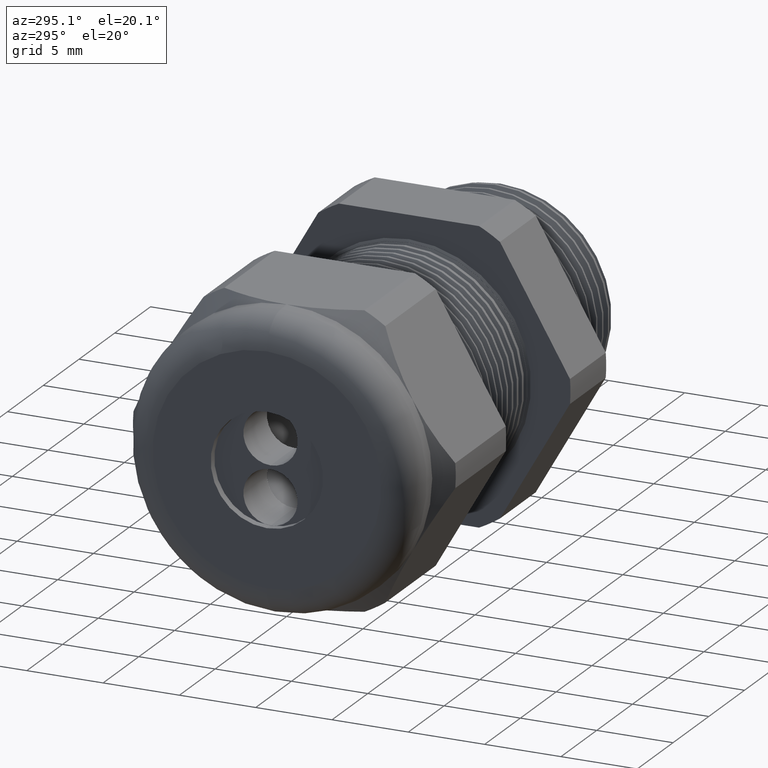
[diagram: clean part render]
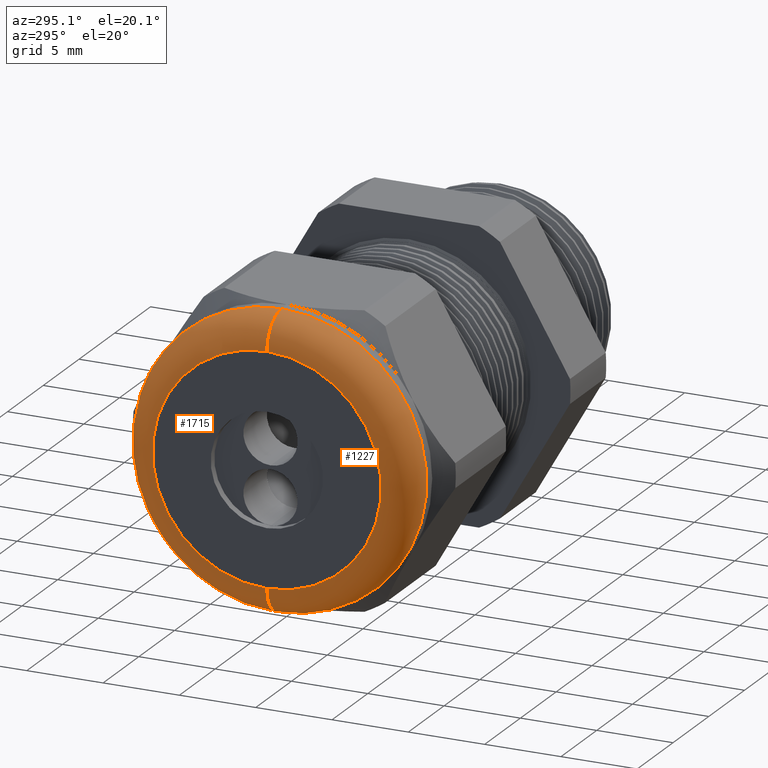
[diagram: same view with one multi-face feature highlighted, each face labeled with its STEP entity id]
A machine part, auxiliary view. The highlighted faces form ONE feature: a constant-radius fillet chain: 2 tangent blend faces with common blend radius 2.032 mm. The faces share edges in the B-rep.
Their STEP definitions:
[1] entity #1715 (Torus):
#1715 = ADVANCED_FACE ( 'NONE', ( #4343 ), #4341, .T. ) ;
#1733 = ORIENTED_EDGE ( 'NONE', *, *, #1747, .F. ) ;
#1734 = ORIENTED_EDGE ( 'NONE', *, *, #1740, .F. ) ;
#1735 = EDGE_CURVE ( 'NONE', #1746, #1738, #4423, .T. ) ;
#1738 = VERTEX_POINT ( 'NONE', #4418 ) ;
#1740 = EDGE_CURVE ( 'NONE', #1745, #1742, #4417, .T. ) ;
#1741 = ORIENTED_EDGE ( 'NONE', *, *, #1735, .T. ) ;
#1742 = VERTEX_POINT ( 'NONE', #4412 ) ;
#1745 = VERTEX_POINT ( 'NONE', #4401 ) ;
#1746 = VERTEX_POINT ( 'NONE', #4400 ) ;
#1747 = EDGE_CURVE ( 'NONE', #1742, #1738, #4399, .T. ) ;
#1748 = EDGE_LOOP ( 'NONE', ( #1749, #1741, #1733, #1734 ) ) ;
#1749 = ORIENTED_EDGE ( 'NONE', *, *, #1750, .F. ) ;
#1750 = EDGE_CURVE ( 'NONE', #1746, #1745, #3396, .T. ) ;
#3396 = CIRCLE ( 'NONE', #3662, 0.3750000000000001100 ) ;
#3660 = DIRECTION ( 'NONE',  ( 0.0000000000000000000, 0.0000000000000000000, 1.000000000000000000 ) ) ;
#3661 = DIRECTION ( 'NONE',  ( 1.000000000000000000, 0.0000000000000000000, 0.0000000000000000000 ) ) ;
#3662 = AXIS2_PLACEMENT_3D ( 'NONE', #3664, #3661, #3660 ) ;
#3664 = CARTESIAN_POINT ( 'NONE',  ( -1.210000000000000000, 0.0000000000000000000, 0.0000000000000000000 ) ) ;
#4338 = DIRECTION ( 'NONE',  ( 0.0000000000000000000, 0.0000000000000000000, 1.000000000000000000 ) ) ;
#4339 = DIRECTION ( 'NONE',  ( -1.000000000000000000, 0.0000000000000000000, 0.0000000000000000000 ) ) ;
#4340 = AXIS2_PLACEMENT_3D ( 'NONE', #4342, #4339, #4338 ) ;
#4341 = TOROIDAL_SURFACE ( 'NONE', #4340, 0.2950000000000001000, 0.08000000000000000200 ) ;
#4342 = CARTESIAN_POINT ( 'NONE',  ( -1.210000000000000000, 0.0000000000000000000, 0.0000000000000000000 ) ) ;
#4343 = FACE_OUTER_BOUND ( 'NONE', #1748, .T. ) ;
#4395 = DIRECTION ( 'NONE',  ( 0.0000000000000000000, 0.0000000000000000000, 1.000000000000000000 ) ) ;
#4396 = DIRECTION ( 'NONE',  ( -1.000000000000000000, 0.0000000000000000000, 0.0000000000000000000 ) ) ;
#4397 = CARTESIAN_POINT ( 'NONE',  ( -1.289999999999999800, 0.0000000000000000000, 0.0000000000000000000 ) ) ;
#4398 = AXIS2_PLACEMENT_3D ( 'NONE', #4397, #4396, #4395 ) ;
#4399 = CIRCLE ( 'NONE', #4398, 0.2950000000000001000 ) ;
#4400 = CARTESIAN_POINT ( 'NONE',  ( -1.210000000000000000, 0.0000000000000000000, -0.3750000000000001100 ) ) ;
#4401 = CARTESIAN_POINT ( 'NONE',  ( -1.210000000000000000, 4.592425496802576100E-017, 0.3750000000000001100 ) ) ;
#4412 = CARTESIAN_POINT ( 'NONE',  ( -1.289999999999999800, 0.0000000000000000000, 0.2950000000000001000 ) ) ;
#4413 = DIRECTION ( 'NONE',  ( 0.0000000000000000000, 0.0000000000000000000, -1.000000000000000000 ) ) ;
#4414 = DIRECTION ( 'NONE',  ( 0.0000000000000000000, -1.000000000000000000, 0.0000000000000000000 ) ) ;
#4415 = CARTESIAN_POINT ( 'NONE',  ( -1.210000000000000000, 0.0000000000000000000, 0.2950000000000001000 ) ) ;
#4416 = AXIS2_PLACEMENT_3D ( 'NONE', #4415, #4414, #4413 ) ;
#4417 = CIRCLE ( 'NONE', #4416, 0.08000000000000000200 ) ;
#4418 = CARTESIAN_POINT ( 'NONE',  ( -1.289999999999999800, 4.102566777143634000E-017, -0.2950000000000001000 ) ) ;
#4419 = DIRECTION ( 'NONE',  ( 0.0000000000000000000, -1.224646799147353500E-016, 1.000000000000000000 ) ) ;
#4420 = DIRECTION ( 'NONE',  ( 0.0000000000000000000, 1.000000000000000000, 1.224646799147353200E-016 ) ) ;
#4421 = CARTESIAN_POINT ( 'NONE',  ( -1.210000000000000000, 3.612708057484693200E-017, -0.2950000000000001000 ) ) ;
#4422 = AXIS2_PLACEMENT_3D ( 'NONE', #4421, #4420, #4419 ) ;
#4423 = CIRCLE ( 'NONE', #4422, 0.08000000000000000200 ) ;
[2] entity #1227 (Torus):
#1000 = EDGE_CURVE ( 'NONE', #1738, #1742, #3086, .T. ) ;
#1061 = EDGE_CURVE ( 'NONE', #1745, #1746, #3224, .T. ) ;
#1227 = ADVANCED_FACE ( 'NONE', ( #3441 ), #3440, .T. ) ;
#1229 = EDGE_LOOP ( 'NONE', ( #1230, #1231, #1232, #1233 ) ) ;
#1230 = ORIENTED_EDGE ( 'NONE', *, *, #1735, .F. ) ;
#1231 = ORIENTED_EDGE ( 'NONE', *, *, #1061, .F. ) ;
#1232 = ORIENTED_EDGE ( 'NONE', *, *, #1740, .T. ) ;
#1233 = ORIENTED_EDGE ( 'NONE', *, *, #1000, .F. ) ;
#1735 = EDGE_CURVE ( 'NONE', #1746, #1738, #4423, .T. ) ;
#1738 = VERTEX_POINT ( 'NONE', #4418 ) ;
#1740 = EDGE_CURVE ( 'NONE', #1745, #1742, #4417, .T. ) ;
#1742 = VERTEX_POINT ( 'NONE', #4412 ) ;
#1745 = VERTEX_POINT ( 'NONE', #4401 ) ;
#1746 = VERTEX_POINT ( 'NONE', #4400 ) ;
#3083 = DIRECTION ( 'NONE',  ( 0.0000000000000000000, 0.0000000000000000000, 1.000000000000000000 ) ) ;
#3084 = DIRECTION ( 'NONE',  ( -1.000000000000000000, 0.0000000000000000000, 0.0000000000000000000 ) ) ;
#3085 = AXIS2_PLACEMENT_3D ( 'NONE', #3092, #3084, #3083 ) ;
#3086 = CIRCLE ( 'NONE', #3085, 0.2950000000000001000 ) ;
#3092 = CARTESIAN_POINT ( 'NONE',  ( -1.289999999999999800, 0.0000000000000000000, 0.0000000000000000000 ) ) ;
#3221 = DIRECTION ( 'NONE',  ( 0.0000000000000000000, 0.0000000000000000000, 1.000000000000000000 ) ) ;
#3222 = DIRECTION ( 'NONE',  ( 1.000000000000000000, 0.0000000000000000000, 0.0000000000000000000 ) ) ;
#3223 = AXIS2_PLACEMENT_3D ( 'NONE', #3228, #3222, #3221 ) ;
#3224 = CIRCLE ( 'NONE', #3223, 0.3750000000000001100 ) ;
#3228 = CARTESIAN_POINT ( 'NONE',  ( -1.210000000000000000, 0.0000000000000000000, 0.0000000000000000000 ) ) ;
#3437 = DIRECTION ( 'NONE',  ( 0.0000000000000000000, 0.0000000000000000000, 1.000000000000000000 ) ) ;
#3438 = DIRECTION ( 'NONE',  ( -1.000000000000000000, 0.0000000000000000000, 0.0000000000000000000 ) ) ;
#3439 = AXIS2_PLACEMENT_3D ( 'NONE', #3445, #3438, #3437 ) ;
#3440 = TOROIDAL_SURFACE ( 'NONE', #3439, 0.2950000000000001000, 0.08000000000000000200 ) ;
#3441 = FACE_OUTER_BOUND ( 'NONE', #1229, .T. ) ;
#3445 = CARTESIAN_POINT ( 'NONE',  ( -1.210000000000000000, 0.0000000000000000000, 0.0000000000000000000 ) ) ;
#4400 = CARTESIAN_POINT ( 'NONE',  ( -1.210000000000000000, 0.0000000000000000000, -0.3750000000000001100 ) ) ;
#4401 = CARTESIAN_POINT ( 'NONE',  ( -1.210000000000000000, 4.592425496802576100E-017, 0.3750000000000001100 ) ) ;
#4412 = CARTESIAN_POINT ( 'NONE',  ( -1.289999999999999800, 0.0000000000000000000, 0.2950000000000001000 ) ) ;
#4413 = DIRECTION ( 'NONE',  ( 0.0000000000000000000, 0.0000000000000000000, -1.000000000000000000 ) ) ;
#4414 = DIRECTION ( 'NONE',  ( 0.0000000000000000000, -1.000000000000000000, 0.0000000000000000000 ) ) ;
#4415 = CARTESIAN_POINT ( 'NONE',  ( -1.210000000000000000, 0.0000000000000000000, 0.2950000000000001000 ) ) ;
#4416 = AXIS2_PLACEMENT_3D ( 'NONE', #4415, #4414, #4413 ) ;
#4417 = CIRCLE ( 'NONE', #4416, 0.08000000000000000200 ) ;
#4418 = CARTESIAN_POINT ( 'NONE',  ( -1.289999999999999800, 4.102566777143634000E-017, -0.2950000000000001000 ) ) ;
#4419 = DIRECTION ( 'NONE',  ( 0.0000000000000000000, -1.224646799147353500E-016, 1.000000000000000000 ) ) ;
#4420 = DIRECTION ( 'NONE',  ( 0.0000000000000000000, 1.000000000000000000, 1.224646799147353200E-016 ) ) ;
#4421 = CARTESIAN_POINT ( 'NONE',  ( -1.210000000000000000, 3.612708057484693200E-017, -0.2950000000000001000 ) ) ;
#4422 = AXIS2_PLACEMENT_3D ( 'NONE', #4421, #4420, #4419 ) ;
#4423 = CIRCLE ( 'NONE', #4422, 0.08000000000000000200 ) ;